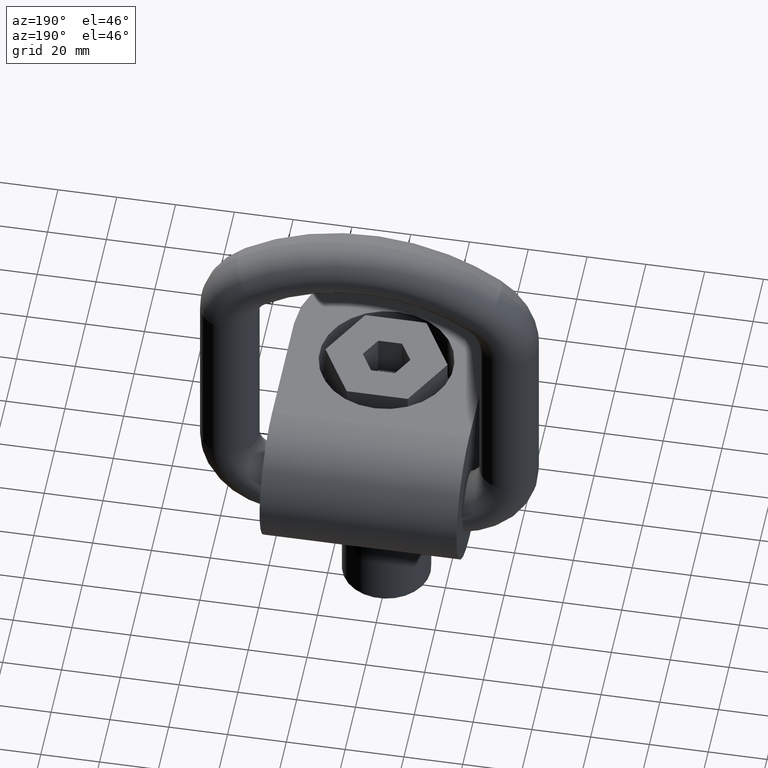
[diagram: clean part render]
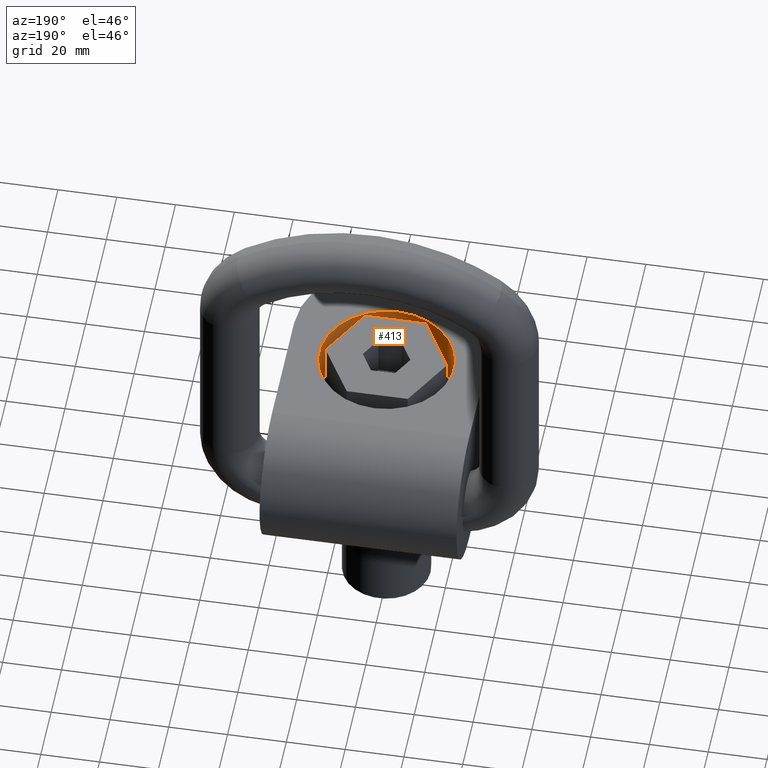
[diagram: same view with one face highlighted and labeled with its STEP entity id]
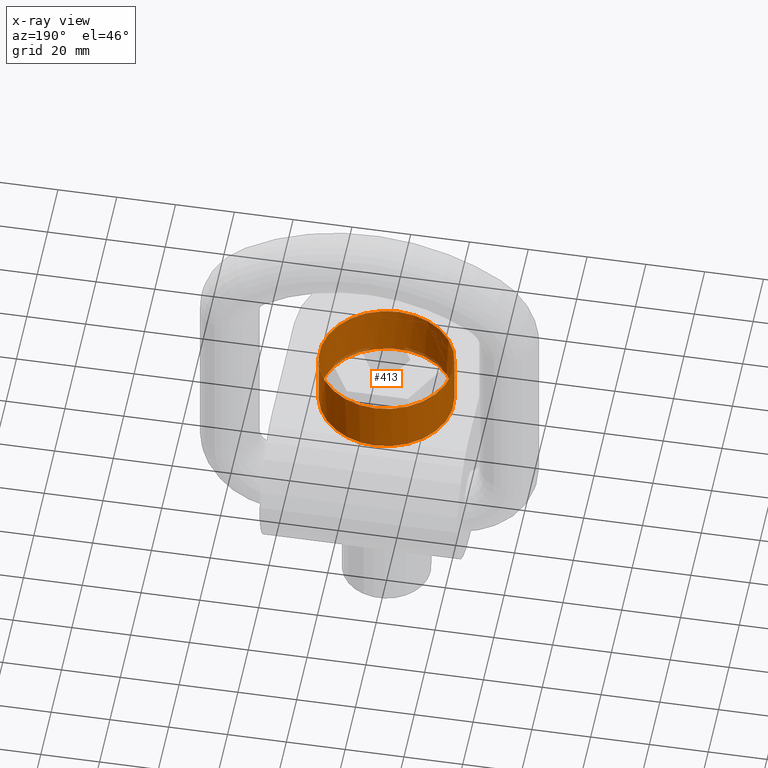
[diagram: x-ray of the same camera — body ghosted, the highlighted face saturated]
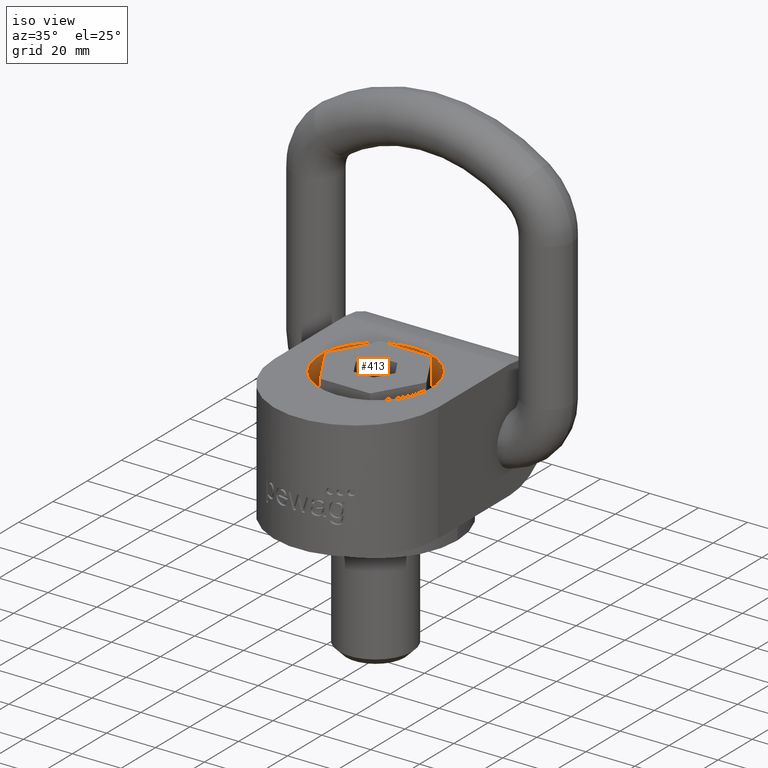
[diagram: same view with one face highlighted and labeled with its STEP entity id]
A machine part, auxiliary view. The second image highlights one B-rep face of the part: STEP entity #413.
The next image is the same camera in x-ray: the body ghosted, the highlighted face saturated — about 2% of this face is hidden behind the body in this view.
A second angle (iso view) of the same face is appended — the face is thin or edge-on in the first view.
In plain terms, the highlighted cylindrical surface (bore or boss wall) has radius 22.7846 mm, axis along (0, 0, -1).
Its self-contained STEP definition (entity closure, byte-faithful):
#413=ADVANCED_FACE('',(#579,#580),#539,.F.);
#539=CYLINDRICAL_SURFACE('',#2499,22.7846096908265);
#579=FACE_BOUND('',#642,.T.);
#580=FACE_BOUND('',#643,.T.);
#642=EDGE_LOOP('',(#1237));
#643=EDGE_LOOP('',(#1238));
#1114=CIRCLE('',#2491,22.7846096908265);
#1117=CIRCLE('',#2498,22.7846096908265);
#1237=ORIENTED_EDGE('',*,*,#2057,.T.);
#1238=ORIENTED_EDGE('',*,*,#2053,.T.);
#1836=VERTEX_POINT('',#3830);
#1837=VERTEX_POINT('',#3839);
#2053=EDGE_CURVE('',#1836,#1836,#1114,.T.);
#2057=EDGE_CURVE('',#1837,#1837,#1117,.T.);
#2491=AXIS2_PLACEMENT_3D('',#3829,#2684,#2685);
#2498=AXIS2_PLACEMENT_3D('',#3838,#2699,#2700);
#2499=AXIS2_PLACEMENT_3D('',#3840,#2701,#2702);
#2684=DIRECTION('',(0.,9.16025597875542E-17,1.));
#2685=DIRECTION('',(0.,1.,0.));
#2699=DIRECTION('',(0.,0.,-1.));
#2700=DIRECTION('',(1.,0.,0.));
#2701=DIRECTION('',(0.,0.,-1.));
#2702=DIRECTION('',(-1.,0.,0.));
#3829=CARTESIAN_POINT('',(0.,3.77191155802137E-15,48.5));
#3830=CARTESIAN_POINT('',(0.,22.7846096908265,48.5));
#3838=CARTESIAN_POINT('',(0.,3.77191155802137E-15,30.5));
#3839=CARTESIAN_POINT('',(22.7846096908265,3.77191155802137E-15,30.5));
#3840=CARTESIAN_POINT('',(0.,3.77191155802137E-15,50.3));